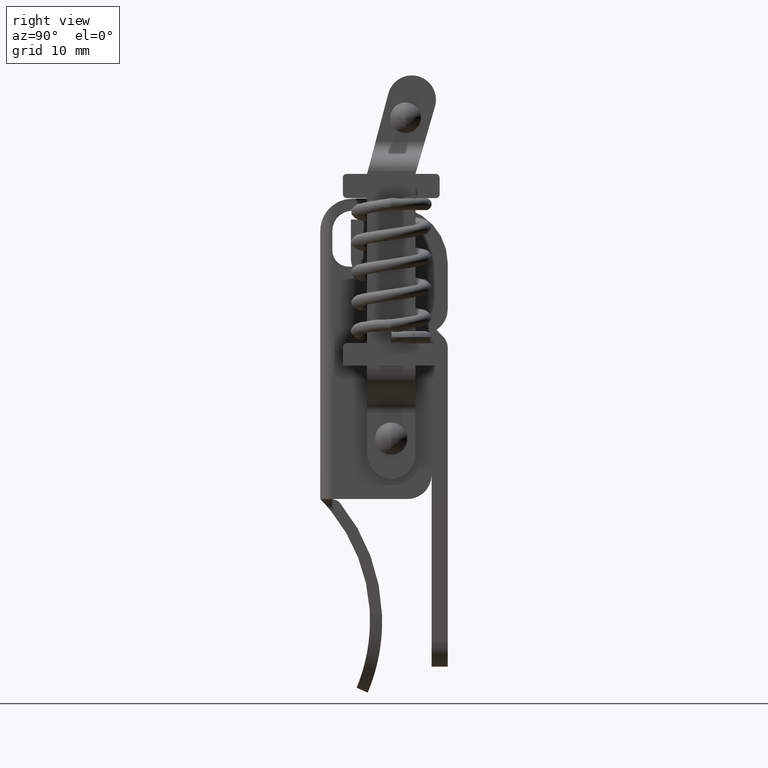
[diagram: clean part render]
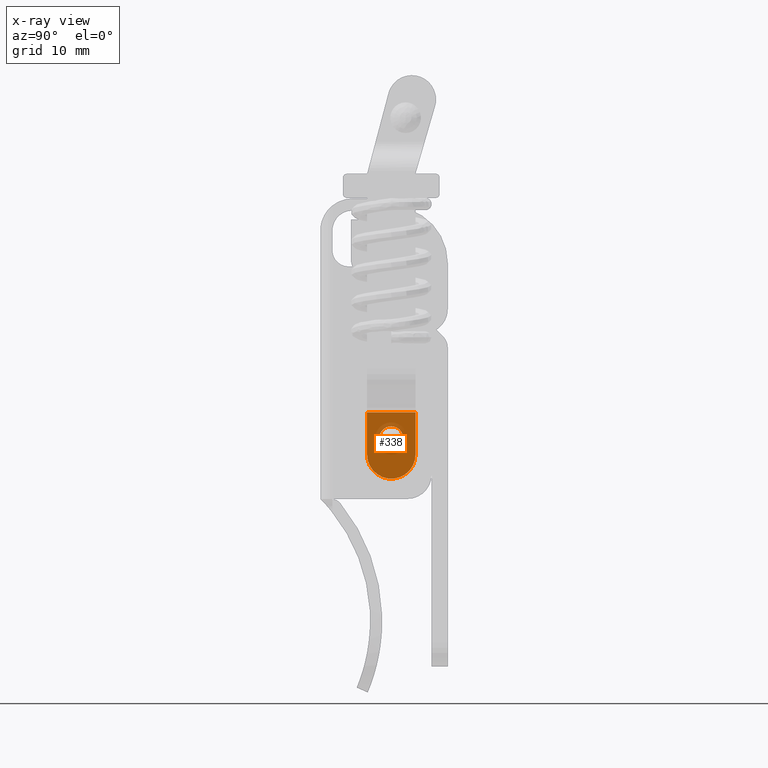
[diagram: x-ray — body ghosted, one internal face saturated and labeled with its STEP entity id]
A machine part, right view, then the same camera in x-ray: the body is ghosted and one INTERNAL B-rep face — a face not visible from any outside direction — is saturated and labeled: STEP entity #338.
In plain terms, the highlighted planar face has unit normal (-1, 0, 0).
Its self-contained STEP definition (entity closure, byte-faithful):
#338=ADVANCED_FACE('',(#1505,#1506),#1504,.F.);
#1504=PLANE('',#6617);
#1505=FACE_OUTER_BOUND('',#6618,.T.);
#1506=FACE_BOUND('',#6619,.T.);
#6614=CARTESIAN_POINT('',(-1.15000000000E+01,-3.60000062530E+00,-5.81502531679E+00));
#6615=DIRECTION('',(-1.00000000000E+00,0.00000000000E+00,0.00000000000E+00));
#6616=DIRECTION('',(0.00000000000E+00,0.00000000000E+00,1.00000000000E+00));
#6617=AXIS2_PLACEMENT_3D('',#6614,#6615,#6616);
#6618=EDGE_LOOP('',(#7712,#7713,#7714,#7715));
#6619=EDGE_LOOP('',(#7716,#7717));
#7712=ORIENTED_EDGE('',*,*,#8549,.F.);
#7713=ORIENTED_EDGE('',*,*,#8550,.F.);
#7714=ORIENTED_EDGE('',*,*,#8448,.F.);
#7715=ORIENTED_EDGE('',*,*,#8548,.T.);
#7716=ORIENTED_EDGE('',*,*,#8551,.T.);
#7717=ORIENTED_EDGE('',*,*,#8552,.T.);
#8448=EDGE_CURVE('',#10197,#10204,#10205,.T.);
#8548=EDGE_CURVE('',#10197,#10865,#10872,.T.);
#8549=EDGE_CURVE('',#10878,#10865,#10879,.T.);
#8550=EDGE_CURVE('',#10204,#10878,#10885,.T.);
#8551=EDGE_CURVE('',#10891,#10892,#10893,.T.);
#8552=EDGE_CURVE('',#10892,#10891,#10899,.T.);
#10197=VERTEX_POINT('',#13744);
#10204=VERTEX_POINT('',#13749);
#10205=LINE('',#13750,#13751);
#10865=VERTEX_POINT('',#14134);
#10872=LINE('',#14139,#14140);
#10878=VERTEX_POINT('',#14142);
#10879=LINE('',#14143,#14144);
#10885=CIRCLE('',#14149,3.00000000000E+00);
#10891=VERTEX_POINT('',#14150);
#10892=VERTEX_POINT('',#14151);
#10893=CIRCLE('',#14155,1.49999978323E+00);
#10899=CIRCLE('',#14159,1.49999978323E+00);
#13744=CARTESIAN_POINT('',(-1.15000000000E+01,3.00000101935E+00,3.21884700000E+00));
#13749=CARTESIAN_POINT('',(-1.15000000000E+01,3.00000039996E+00,-1.99376413970E+00));
#13750=CARTESIAN_POINT('',(-1.15000000000E+01,3.00000101935E+00,3.21884700000E+00));
#13751=VECTOR('',#13752,5.21261113970E+00);
#13752=DIRECTION('',(0.00000000000E+00,-1.18825253630E-07,-1.00000000000E+00));
#14134=CARTESIAN_POINT('',(-1.15000000000E+01,-2.99999946065E+00,3.21884700000E+00));
#14139=CARTESIAN_POINT('',(-1.15000000000E+01,3.00000101935E+00,3.21884700000E+00));
#14140=VECTOR('',#14141,6.00000048000E+00);
#14141=DIRECTION('',(0.00000000000E+00,-1.00000000000E+00,0.00000000000E+00));
#14142=CARTESIAN_POINT('',(-1.15000000000E+01,-3.00000000455E+00,-1.99376331199E+00));
#14143=CARTESIAN_POINT('',(-1.15000000000E+01,-3.00000007500E+00,-1.99376331199E+00));
#14144=VECTOR('',#14145,5.21261031199E+00);
#14145=DIRECTION('',(0.00000000000E+00,1.17857924904E-07,1.00000000000E+00));
#14146=CARTESIAN_POINT('',(-1.15000000000E+01,-4.54539872408E-09,-1.99376378323E+00));
#14147=DIRECTION('',(-1.00000000000E+00,-0.00000000000E+00,-0.00000000000E+00));
#14148=DIRECTION('',(-0.00000000000E+00,-0.00000000000E+00,1.00000000000E+00));
#14149=AXIS2_PLACEMENT_3D('',#14146,#14147,#14148);
#14150=CARTESIAN_POINT('',(-1.15000000000E+01,0.00000000000E+00,1.49999978323E+00));
#14151=CARTESIAN_POINT('',(-1.15000000000E+01,-7.40148683083E-17,-1.49999978323E+00));
#14152=CARTESIAN_POINT('',(-1.15000000000E+01,0.00000000000E+00,0.00000000000E+00));
#14153=DIRECTION('',(-1.00000000000E+00,0.00000000000E+00,0.00000000000E+00));
#14154=DIRECTION('',(0.00000000000E+00,-1.22460635382E-16,1.00000000000E+00));
#14155=AXIS2_PLACEMENT_3D('',#14152,#14153,#14154);
#14156=CARTESIAN_POINT('',(-1.15000000000E+01,0.00000000000E+00,0.00000000000E+00));
#14157=DIRECTION('',(-1.00000000000E+00,0.00000000000E+00,0.00000000000E+00));
#14158=DIRECTION('',(0.00000000000E+00,-1.22460635382E-16,1.00000000000E+00));
#14159=AXIS2_PLACEMENT_3D('',#14156,#14157,#14158);